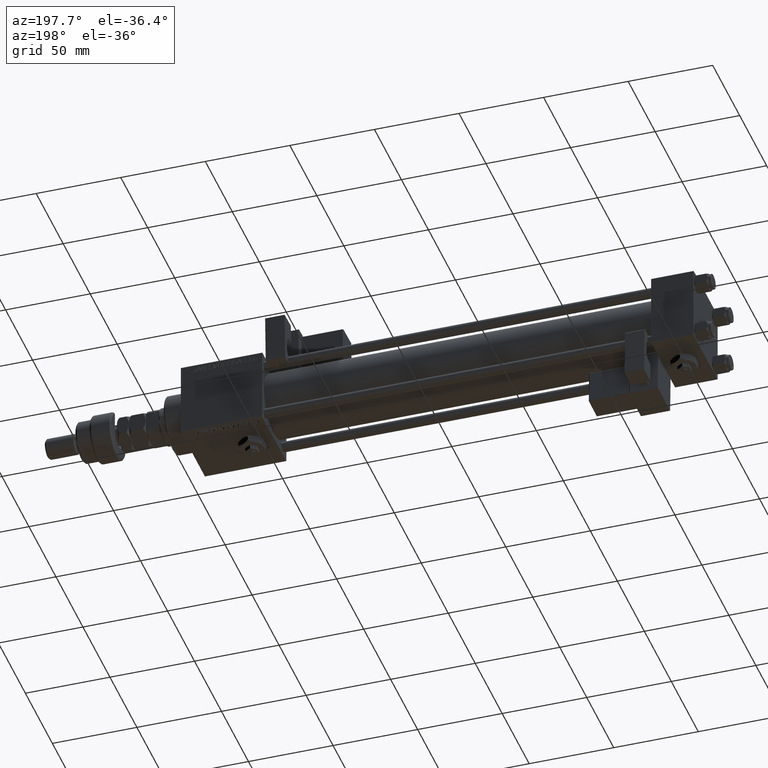
[diagram: clean part render]
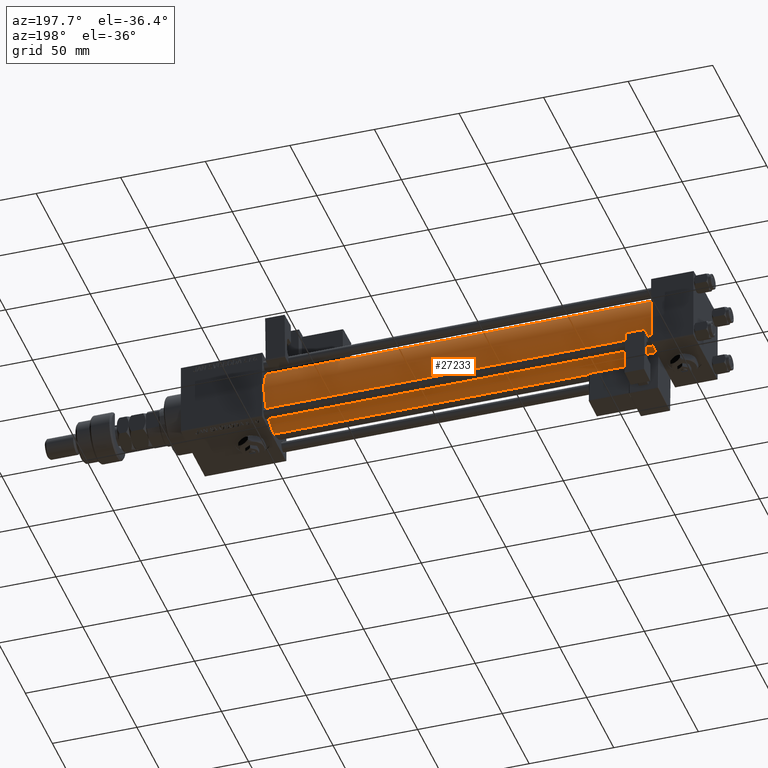
[diagram: same view with one face highlighted and labeled with its STEP entity id]
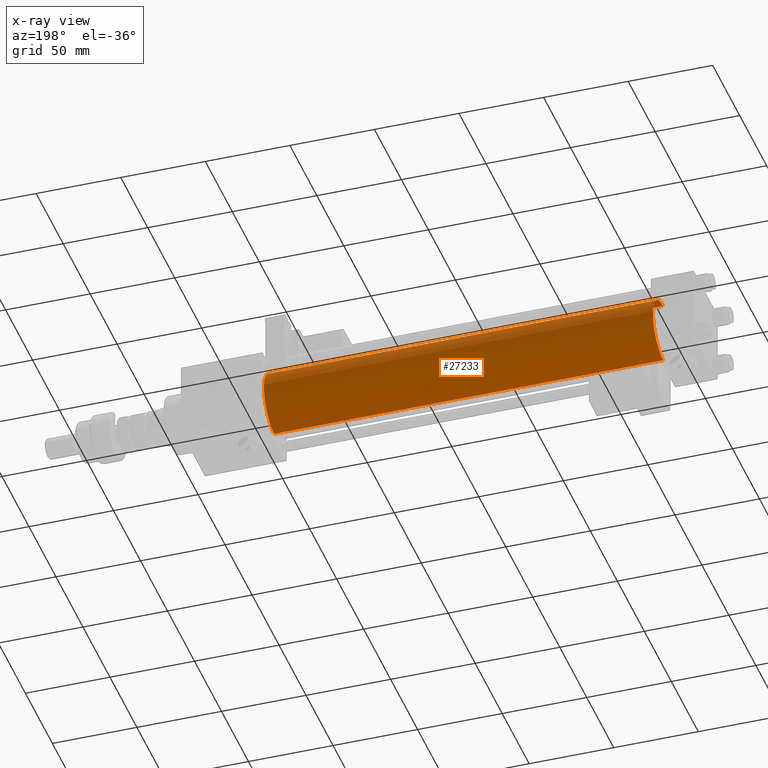
[diagram: x-ray of the same camera — body ghosted, the highlighted face saturated]
A machine part, auxiliary view. The second image highlights one B-rep face of the part: STEP entity #27233.
The next image is the same camera in x-ray: the body ghosted, the highlighted face saturated — about 0% of this face is hidden behind the body in this view.
In plain terms, the highlighted cylindrical surface (edge-blend (fillet) strip) has radius 19 mm, axis along (-1, -0, -0).
Its self-contained STEP definition (entity closure, byte-faithful):
#180 = CARTESIAN_POINT ( 'NONE',  ( 24.99999999999999289, -2.602085213965210642E-15, 0.000000000000000000 ) ) ;
#441 = EDGE_LOOP ( 'NONE', ( #46669, #20098, #780, #51054 ) ) ;
#780 = ORIENTED_EDGE ( 'NONE', *, *, #39087, .T. ) ;
#785 = CARTESIAN_POINT ( 'NONE',  ( 255.0000000000000000, -2.752562955852396712E-16, -19.00000000000000000 ) ) ;
#1900 = DIRECTION ( 'NONE',  ( 1.000000000000000000, -0.000000000000000000, 0.000000000000000000 ) ) ;
#2152 = CARTESIAN_POINT ( 'NONE',  ( 24.99999999999999289, -2.752562955852396712E-16, -19.00000000000000000 ) ) ;
#2784 = CARTESIAN_POINT ( 'NONE',  ( 255.0000000000000000, -2.752562955852396712E-16, -19.00000000000000000 ) ) ;
#7701 = EDGE_CURVE ( 'NONE', #49949, #18430, #29644, .T. ) ;
#9148 = AXIS2_PLACEMENT_3D ( 'NONE', #180, #1900, #37349 ) ;
#10071 = CIRCLE ( 'NONE', #9148, 19.00000000000000000 ) ;
#11300 = VERTEX_POINT ( 'NONE', #2152 ) ;
#11803 = LINE ( 'NONE', #29787, #55820 ) ;
#15876 = LINE ( 'NONE', #2784, #30719 ) ;
#17082 = CYLINDRICAL_SURFACE ( 'NONE', #41997, 19.00000000000000000 ) ;
#18430 = VERTEX_POINT ( 'NONE', #33083 ) ;
#20098 = ORIENTED_EDGE ( 'NONE', *, *, #20835, .T. ) ;
#20835 = EDGE_CURVE ( 'NONE', #49949, #11300, #15876, .T. ) ;
#21738 = EDGE_CURVE ( 'NONE', #18430, #56794, #11803, .T. ) ;
#24510 = DIRECTION ( 'NONE',  ( 1.000000000000000000, 0.000000000000000000, 0.000000000000000000 ) ) ;
#25502 = FACE_OUTER_BOUND ( 'NONE', #441, .T. ) ;
#27233 = ADVANCED_FACE ( 'NONE', ( #25502 ), #17082, .T. ) ;
#29644 = CIRCLE ( 'NONE', #43527, 19.00000000000000000 ) ;
#29787 = CARTESIAN_POINT ( 'NONE',  ( 255.0000000000000000, -2.602085213965210642E-15, 19.00000000000000000 ) ) ;
#30719 = VECTOR ( 'NONE', #42861, 1000.000000000000000 ) ;
#33083 = CARTESIAN_POINT ( 'NONE',  ( 255.0000000000000000, -2.602085213965210642E-15, 19.00000000000000000 ) ) ;
#34490 = CARTESIAN_POINT ( 'NONE',  ( 255.0000000000000000, -2.602085213965210642E-15, 0.000000000000000000 ) ) ;
#37349 = DIRECTION ( 'NONE',  ( 0.000000000000000000, 0.000000000000000000, 1.000000000000000000 ) ) ;
#39087 = EDGE_CURVE ( 'NONE', #11300, #56794, #10071, .T. ) ;
#39715 = DIRECTION ( 'NONE',  ( -1.000000000000000000, -0.000000000000000000, -0.000000000000000000 ) ) ;
#41997 = AXIS2_PLACEMENT_3D ( 'NONE', #34490, #39715, #52218 ) ;
#42861 = DIRECTION ( 'NONE',  ( -1.000000000000000000, -0.000000000000000000, -0.000000000000000000 ) ) ;
#42869 = DIRECTION ( 'NONE',  ( -1.000000000000000000, -0.000000000000000000, -0.000000000000000000 ) ) ;
#43527 = AXIS2_PLACEMENT_3D ( 'NONE', #46573, #24510, #47139 ) ;
#46336 = CARTESIAN_POINT ( 'NONE',  ( 24.99999999999999289, -2.602085213965210642E-15, 19.00000000000000000 ) ) ;
#46573 = CARTESIAN_POINT ( 'NONE',  ( 255.0000000000000000, -2.602085213965210642E-15, 0.000000000000000000 ) ) ;
#46669 = ORIENTED_EDGE ( 'NONE', *, *, #7701, .F. ) ;
#47139 = DIRECTION ( 'NONE',  ( 0.000000000000000000, 0.000000000000000000, -1.000000000000000000 ) ) ;
#49949 = VERTEX_POINT ( 'NONE', #785 ) ;
#51054 = ORIENTED_EDGE ( 'NONE', *, *, #21738, .F. ) ;
#52218 = DIRECTION ( 'NONE',  ( 0.000000000000000000, 0.000000000000000000, 1.000000000000000000 ) ) ;
#55820 = VECTOR ( 'NONE', #42869, 1000.000000000000000 ) ;
#56794 = VERTEX_POINT ( 'NONE', #46336 ) ;